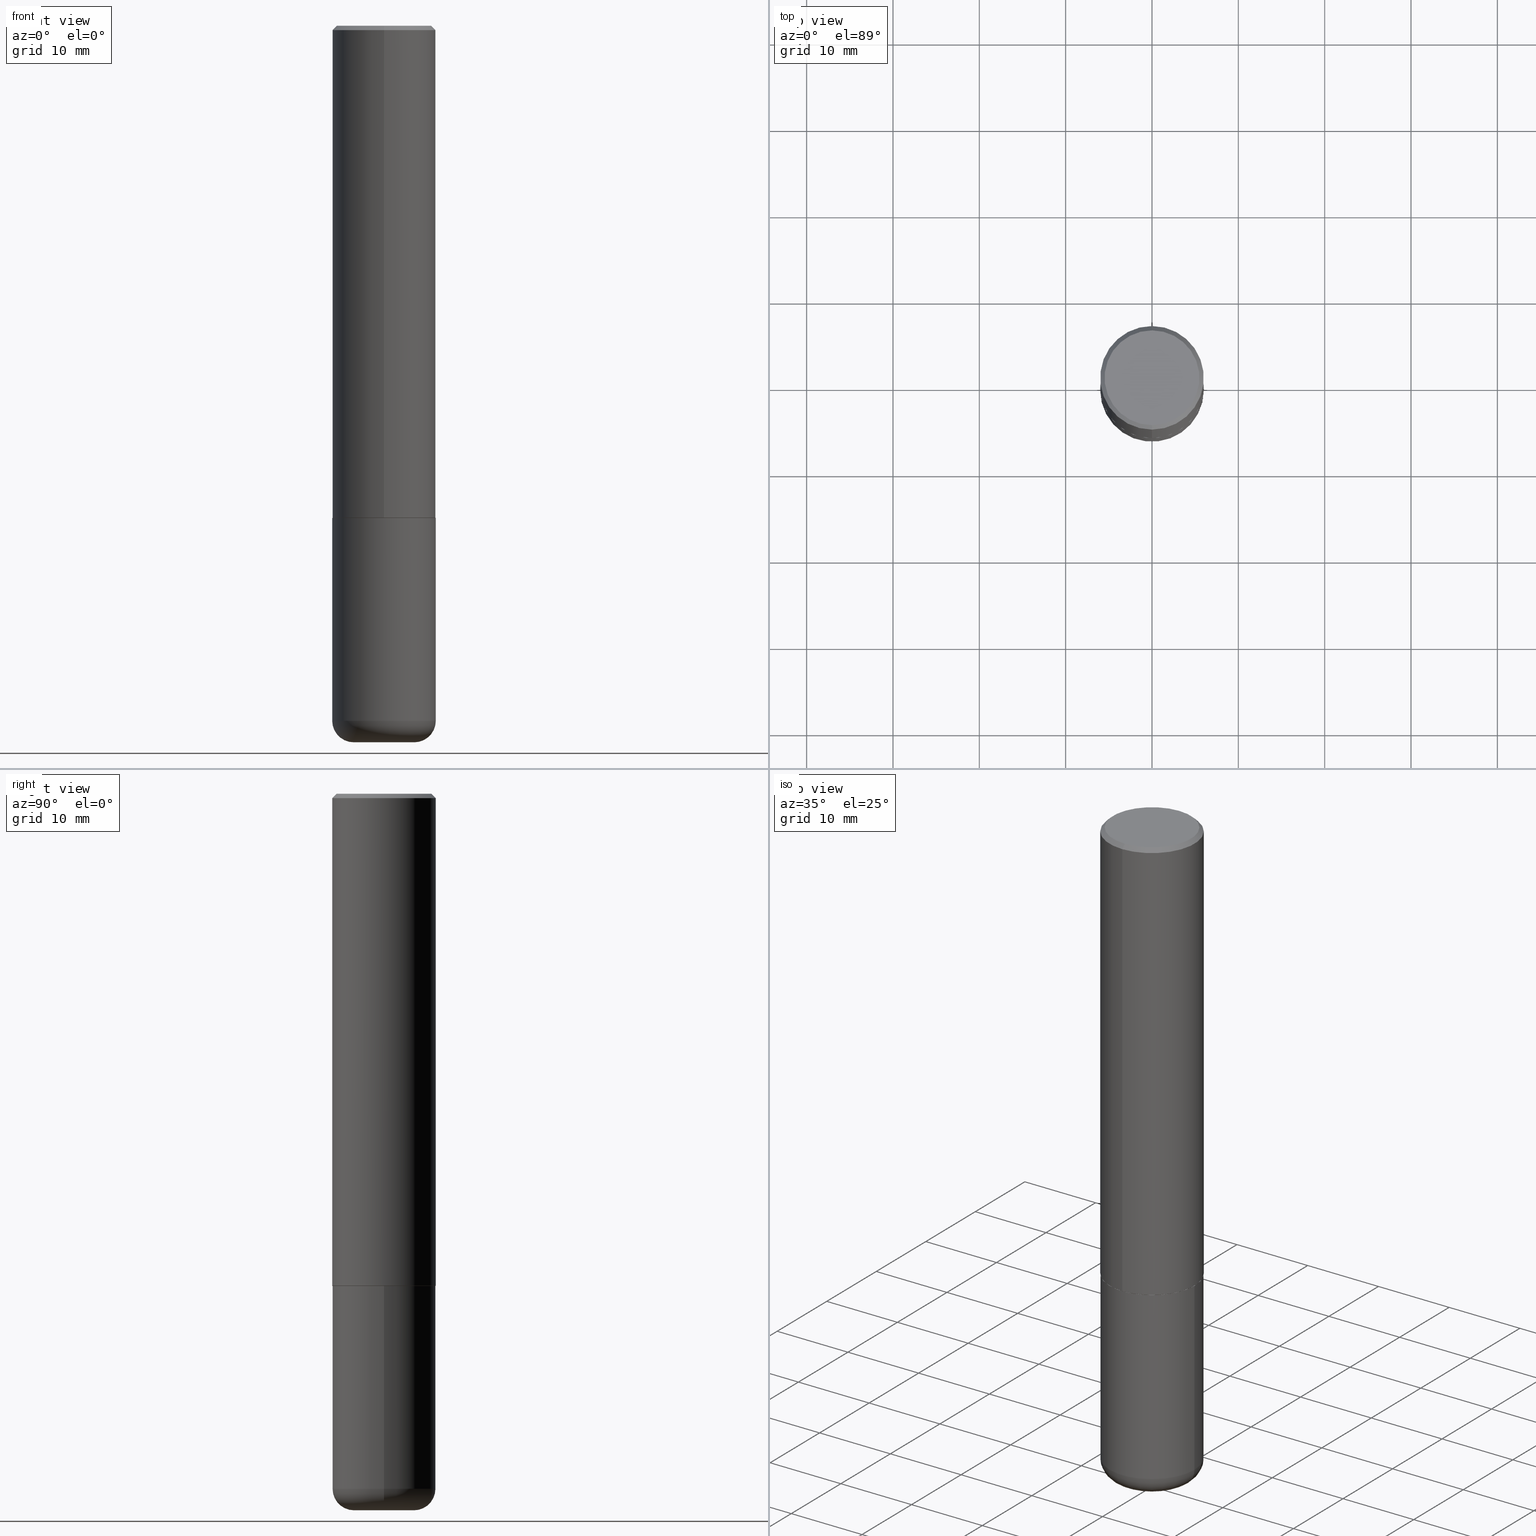
[diagram: canonical four-view strip — front | top / right | iso, engineering-drawing reading convention]
A machine part, canonical four-view strip (front | top / right | iso — engineering-drawing reading convention). The complete STEP part file that produces these views, byte-faithful:
ISO-10303-21;
HEADER;
FILE_DESCRIPTION (( 'STEP AP203' ),
    '1' );
FILE_NAME ('47171.STEP',
    '2024-03-06T01:20:21',
    ( '' ),
    ( '' ),
    'SwSTEP 2.0',
    'SolidWorks 2023',
    '' );
FILE_SCHEMA (( 'CONFIG_CONTROL_DESIGN' ));
ENDSEC;

DATA;
#1 = ORIENTED_EDGE ( 'NONE', *, *, #309, .T. ) ;
#2 = PERSON ( 'UNSPECIFIED', 'UNSPECIFIED', 'UNSPECIFIED', ('UNSPECIFIED'), ('UNSPECIFIED'), ('UNSPECIFIED') ) ;
#3 = EDGE_CURVE ( 'NONE', #266, #196, #102, .T. ) ;
#4 = ORIENTED_EDGE ( 'NONE', *, *, #389, .F. ) ;
#5 = DIRECTION ( 'NONE',  ( -2.445468806185136597E-29, 3.491481338843145583E-15, 1.000000000000000000 ) ) ;
#6 = EDGE_LOOP ( 'NONE', ( #298, #342 ) ) ;
#7 = APPLICATION_CONTEXT ( 'configuration controlled 3d designs of mechanical parts and assemblies' ) ;
#8 = AXIS2_PLACEMENT_3D ( 'NONE', #247, #401, #194 ) ;
#9 = DIRECTION ( 'NONE',  ( -2.443198551934710321E-29, 3.494732472144603410E-15, 1.000000000000000000 ) ) ;
#10 = CARTESIAN_POINT ( 'NONE',  ( 7.178715118017931868E-45, -1.026837905226585320E-30, -2.938244667971532280E-16 ) ) ;
#11 = CARTESIAN_POINT ( 'NONE',  ( 1.678301941865385582E-15, 0.2361999999999924160, -2.243100000000000982 ) ) ;
#12 = DIRECTION ( 'NONE',  ( -2.443198551934710321E-29, 3.494732472144603410E-15, 1.000000000000000000 ) ) ;
#13 = ADVANCED_FACE ( 'NONE', ( #150 ), #269, .F. ) ;
#14 = PLANE ( 'NONE',  #284 ) ;
#15 = ORIENTED_EDGE ( 'NONE', *, *, #50, .F. ) ;
#16 = EDGE_CURVE ( 'NONE', #120, #146, #75, .T. ) ;
#17 = AXIS2_PLACEMENT_3D ( 'NONE', #10, #393, #143 ) ;
#18 = ORIENTED_EDGE ( 'NONE', *, *, #223, .T. ) ;
#19 = DATE_AND_TIME ( #58, #92 ) ;
#20 = COORDINATED_UNIVERSAL_TIME_OFFSET ( 5, 0, .BEHIND. ) ;
#21 = CARTESIAN_POINT ( 'NONE',  ( -0.2362000000000000766, -7.772090597981385734E-15, -2.244100000000000428 ) ) ;
#22 = CARTESIAN_POINT ( 'NONE',  ( 4.886397103869442398E-31, -6.989464944289237832E-17, -0.02000000000000009062 ) ) ;
#23 = AXIS2_PLACEMENT_3D ( 'NONE', #293, #356, #106 ) ;
#24 = AXIS2_PLACEMENT_3D ( 'NONE', #337, #109, #307 ) ;
#25 = DIRECTION ( 'NONE',  ( 2.443198551934710321E-29, -3.494732472144603016E-15, -1.000000000000000000 ) ) ;
#26 = ADVANCED_FACE ( 'NONE', ( #44 ), #304, .T. ) ;
#27 = CARTESIAN_POINT ( 'NONE',  ( -1.551844647095920733E-15, -0.2162000000000002808, 4.617366936805109079E-16 ) ) ;
#28 = ORIENTED_EDGE ( 'NONE', *, *, #327, .T. ) ;
#29 = VECTOR ( 'NONE', #355, 39.37007874015748143 ) ;
#30 = DIRECTION ( 'NONE',  ( -6.982962677686265922E-15, -1.000000000000000000, 3.484499991918702719E-15 ) ) ;
#31 = DIRECTION ( 'NONE',  ( -4.851104656540954020E-15, -0.7071067811865485719, -0.7071067811865464625 ) ) ;
#32 = DESIGN_CONTEXT ( 'detailed design', #7, 'design' ) ;
#33 = CIRCLE ( 'NONE', #205, 0.2162000000000002808 ) ;
#34 = DIRECTION ( 'NONE',  ( 1.000000000000000000, -6.982962677686268288E-15, 0.000000000000000000 ) ) ;
#35 = ORIENTED_EDGE ( 'NONE', *, *, #156, .F. ) ;
#36 = ADVANCED_FACE ( 'NONE', ( #148 ), #198, .T. ) ;
#37 = DIRECTION ( 'NONE',  ( -2.445468806185136597E-29, 3.491481338843145583E-15, 1.000000000000000000 ) ) ;
#38 = DIMENSIONAL_EXPONENTS ( 1.000000000000000000, 0.000000000000000000, 0.000000000000000000, 0.000000000000000000, 0.000000000000000000, 0.000000000000000000, 0.000000000000000000 ) ;
#39 = CARTESIAN_POINT ( 'NONE',  ( 5.482781870396684000E-29, -7.842529140739704038E-15, -2.244100000000000428 ) ) ;
#40 = VERTEX_POINT ( 'NONE', #122 ) ;
#41 = AXIS2_PLACEMENT_3D ( 'NONE', #190, #315, #59 ) ;
#42 = FACE_OUTER_BOUND ( 'NONE', #6, .T. ) ;
#43 =( GEOMETRIC_REPRESENTATION_CONTEXT ( 3 ) GLOBAL_UNCERTAINTY_ASSIGNED_CONTEXT ( ( #108 ) ) GLOBAL_UNIT_ASSIGNED_CONTEXT ( ( #237, #395, #333 ) ) REPRESENTATION_CONTEXT ( 'NONE', 'WORKASPACE' ) );
#44 = FACE_OUTER_BOUND ( 'NONE', #137, .T. ) ;
#45 = EDGE_CURVE ( 'NONE', #100, #120, #231, .T. ) ;
#46 = PERSON_AND_ORGANIZATION ( #2, #131 ) ;
#47 = DIRECTION ( 'NONE',  ( -1.000000000000000000, 6.982962677686265922E-15, -4.876176775795935793E-29 ) ) ;
#48 = APPROVAL_DATE_TIME ( #86, #398 ) ;
#49 = EDGE_LOOP ( 'NONE', ( #70, #79, #82, #113 ) ) ;
#50 = EDGE_CURVE ( 'NONE', #241, #292, #384, .T. ) ;
#51 = PERSON_AND_ORGANIZATION ( #2, #131 ) ;
#52 = VECTOR ( 'NONE', #177, 39.37007874015748143 ) ;
#53 = DIRECTION ( 'NONE',  ( 2.443198551934710321E-29, -3.494732472144603410E-15, -1.000000000000000000 ) ) ;
#54 = APPROVAL_ROLE ( '' ) ;
#55 = CC_DESIGN_DATE_AND_TIME_ASSIGNMENT ( #348, #375, ( #256 ) ) ;
#56 = DIRECTION ( 'NONE',  ( -6.982962677686265922E-15, -1.000000000000000000, 3.484499991918702719E-15 ) ) ;
#57 = CARTESIAN_POINT ( 'NONE',  ( -0.1378000000000000058, -9.908617773195276440E-15, -3.267700000000000049 ) ) ;
#58 = CALENDAR_DATE ( 2024, 5, 3 ) ;
#59 = DIRECTION ( 'NONE',  ( 6.982962677686265922E-15, 1.000000000000000000, -3.487819265831411744E-15 ) ) ;
#60 = VECTOR ( 'NONE', #261, 39.37007874015748143 ) ;
#61 = CC_DESIGN_APPROVAL ( #192, ( #256 ) ) ;
#62 = DIRECTION ( 'NONE',  ( -2.443198551934710321E-29, 3.494732472144603410E-15, 1.000000000000000000 ) ) ;
#63 = EDGE_LOOP ( 'NONE', ( #332, #238, #210, #361 ) ) ;
#64 = ADVANCED_FACE ( 'NONE', ( #126 ), #249, .T. ) ;
#65 = DIRECTION ( 'NONE',  ( -2.445468806185136597E-29, 3.491481338843145583E-15, 1.000000000000000000 ) ) ;
#66 = AXIS2_PLACEMENT_3D ( 'NONE', #224, #94, #280 ) ;
#67 = CARTESIAN_POINT ( 'NONE',  ( -1.620449627073635079E-15, -0.2362000000000000766, -0.01999999999999926489 ) ) ;
#68 = CC_DESIGN_DATE_AND_TIME_ASSIGNMENT ( #19, #219, ( #97 ) ) ;
#69 = CARTESIAN_POINT ( 'NONE',  ( -1.642392821791755093E-15, -0.2352000000000078750, -2.244099999999999540 ) ) ;
#70 = ORIENTED_EDGE ( 'NONE', *, *, #45, .F. ) ;
#71 = CARTESIAN_POINT ( 'NONE',  ( 7.750424287442554569E-29, -1.106555180719558034E-14, -3.169299999999999784 ) ) ;
#72 = ORIENTED_EDGE ( 'NONE', *, *, #259, .T. ) ;
#73 = CONICAL_SURFACE ( 'NONE', #41, 0.2361999999999999933, 0.7853981633974463916 ) ;
#74 = DIRECTION ( 'NONE',  ( 2.438088387897960049E-29, -3.491481338843145188E-15, -1.000000000000000000 ) ) ;
#75 = LINE ( 'NONE', #185, #52 ) ;
#76 = DIRECTION ( 'NONE',  ( 0.000000000000000000, 0.000000000000000000, 1.000000000000000000 ) ) ;
#77 = ORIENTED_EDGE ( 'NONE', *, *, #229, .F. ) ;
#78 = EDGE_CURVE ( 'NONE', #324, #241, #282, .T. ) ;
#79 = ORIENTED_EDGE ( 'NONE', *, *, #318, .T. ) ;
#80 = AXIS2_PLACEMENT_3D ( 'NONE', #321, #91, #56 ) ;
#81 = DIRECTION ( 'NONE',  ( 1.000000000000000000, 0.000000000000000000, 0.000000000000000000 ) ) ;
#82 = ORIENTED_EDGE ( 'NONE', *, *, #386, .T. ) ;
#83 = APPROVAL_DATE_TIME ( #244, #248 ) ;
#84 = ORIENTED_EDGE ( 'NONE', *, *, #104, .F. ) ;
#85 = ADVANCED_FACE ( 'NONE', ( #285 ), #313, .T. ) ;
#86 = DATE_AND_TIME ( #252, #138 ) ;
#87 = CARTESIAN_POINT ( 'NONE',  ( -0.2362000000000000766, -9.387249865330223945E-15, -3.169299999999999784 ) ) ;
#88 = CLOSED_SHELL ( 'NONE', ( #240, #26, #121, #163, #214, #36, #218, #134 ) ) ;
#89 = PERSON_AND_ORGANIZATION_ROLE ( 'classification_officer' ) ;
#90 = CIRCLE ( 'NONE', #325, 0.1378000000000000058 ) ;
#91 = DIRECTION ( 'NONE',  ( -2.443198551934710321E-29, 3.494732472144603410E-15, 1.000000000000000000 ) ) ;
#92 = LOCAL_TIME ( 20, 20, 21.00000000000000000, #402 ) ;
#93 = CARTESIAN_POINT ( 'NONE',  ( -1.649375784469496920E-15, -0.2362000000000001321, 8.254558099205557624E-16 ) ) ;
#94 = DIRECTION ( 'NONE',  ( -2.445468806185136597E-29, 3.491481338843145583E-15, 1.000000000000000000 ) ) ;
#95 = DIRECTION ( 'NONE',  ( 1.000000000000000000, -6.982962677686266711E-15, 4.876176775795936353E-29 ) ) ;
#96 = CIRCLE ( 'NONE', #166, 0.2362000000000000210 ) ;
#97 = PRODUCT_DEFINITION ( 'UNKNOWN', '', #302, #32 ) ;
#98 = DIRECTION ( 'NONE',  ( -2.443198551934710321E-29, 3.494732472144603410E-15, 1.000000000000000000 ) ) ;
#99 = CARTESIAN_POINT ( 'NONE',  ( 7.750424287442554569E-29, -1.106555180719558034E-14, -3.169299999999999784 ) ) ;
#100 = VERTEX_POINT ( 'NONE', #57 ) ;
#101 = CIRCLE ( 'NONE', #275, 0.2362000000000002709 ) ;
#102 = CIRCLE ( 'NONE', #17, 0.2162000000000002808 ) ;
#103 = APPROVAL_PERSON_ORGANIZATION ( #299, #248, #145 ) ;
#104 = EDGE_CURVE ( 'NONE', #182, #40, #151, .T. ) ;
#105 = PRODUCT_DEFINITION_SHAPE ( 'NONE', 'NONE',  #97 ) ;
#106 = DIRECTION ( 'NONE',  ( 1.000000000000000000, -6.982962677686268288E-15, 0.000000000000000000 ) ) ;
#107 = ORIENTED_EDGE ( 'NONE', *, *, #50, .T. ) ;
#108 = UNCERTAINTY_MEASURE_WITH_UNIT (LENGTH_MEASURE( 1.000000000000000082E-05 ), #237, 'distance_accuracy_value', 'NONE');
#109 = DIRECTION ( 'NONE',  ( -2.443198551934710321E-29, 3.494732472144603410E-15, 1.000000000000000000 ) ) ;
#110 = EDGE_LOOP ( 'NONE', ( #396, #344 ) ) ;
#111 = AXIS2_PLACEMENT_3D ( 'NONE', #207, #12, #334 ) ;
#112 = CARTESIAN_POINT ( 'NONE',  ( -1.649375784469443080E-15, -0.2362000000000081257, -2.243099999999999206 ) ) ;
#113 = ORIENTED_EDGE ( 'NONE', *, *, #327, .F. ) ;
#114 = CARTESIAN_POINT ( 'NONE',  ( 4.886397103869442398E-31, -6.989464944289237832E-17, -0.02000000000000009062 ) ) ;
#115 = ORIENTED_EDGE ( 'NONE', *, *, #272, .T. ) ;
#116 = DIRECTION ( 'NONE',  ( 1.000000000000000000, -6.982962677686272233E-15, 0.000000000000000000 ) ) ;
#117 = ORIENTED_EDGE ( 'NONE', *, *, #343, .F. ) ;
#118 = VECTOR ( 'NONE', #139, 39.37007874015748143 ) ;
#119 = CALENDAR_DATE ( 2024, 5, 3 ) ;
#120 = VERTEX_POINT ( 'NONE', #87 ) ;
#121 = ADVANCED_FACE ( 'NONE', ( #349 ), #73, .T. ) ;
#122 = CARTESIAN_POINT ( 'NONE',  ( 1.674749228186611702E-15, 0.2351999999999921653, -2.244100000000000872 ) ) ;
#123 = PERSON_AND_ORGANIZATION_ROLE ( 'design_supplier' ) ;
#124 = DIRECTION ( 'NONE',  ( -2.443198551934710321E-29, 3.494732472144603016E-15, 1.000000000000000000 ) ) ;
#125 = CALENDAR_DATE ( 2024, 5, 3 ) ;
#126 = FACE_OUTER_BOUND ( 'NONE', #63, .T. ) ;
#127 = PLANE ( 'NONE',  #312 ) ;
#128 = CARTESIAN_POINT ( 'NONE',  ( 0.000000000000000000, 0.000000000000000000, 0.000000000000000000 ) ) ;
#129 = LINE ( 'NONE', #226, #29 ) ;
#130 = AXIS2_PLACEMENT_3D ( 'NONE', #228, #288, #413 ) ;
#131 = ORGANIZATION ( 'UNSPECIFIED', 'UNSPECIFIED', '' ) ;
#132 = EDGE_CURVE ( 'NONE', #196, #266, #33, .T. ) ;
#133 = CARTESIAN_POINT ( 'NONE',  ( -1.620449627073635079E-15, -0.2362000000000000766, -0.01999999999999926489 ) ) ;
#134 = ADVANCED_FACE ( 'NONE', ( #350 ), #127, .F. ) ;
#135 = ORIENTED_EDGE ( 'NONE', *, *, #259, .F. ) ;
#136 = LINE ( 'NONE', #168, #60 ) ;
#137 = EDGE_LOOP ( 'NONE', ( #18, #367, #15, #179 ) ) ;
#138 = LOCAL_TIME ( 20, 20, 21.00000000000000000, #153 ) ;
#139 = DIRECTION ( 'NONE',  ( -2.443198551934710321E-29, 3.494732472144603016E-15, 1.000000000000000000 ) ) ;
#140 = ORIENTED_EDGE ( 'NONE', *, *, #78, .T. ) ;
#141 = APPLICATION_PROTOCOL_DEFINITION ( 'international standard', 'config_control_design', 1994, #7 ) ;
#142 = DIRECTION ( 'NONE',  ( -1.000000000000000000, 6.982962677686265922E-15, -4.876176775795935793E-29 ) ) ;
#143 = DIRECTION ( 'NONE',  ( -6.982962677686265922E-15, -1.000000000000000000, 3.494732472144603410E-15 ) ) ;
#144 = CIRCLE ( 'NONE', #339, 0.2361999999999999933 ) ;
#145 = APPROVAL_ROLE ( '' ) ;
#146 = VERTEX_POINT ( 'NONE', #21 ) ;
#147 =( LENGTH_UNIT ( ) NAMED_UNIT ( * ) SI_UNIT ( $, .METRE. ) );
#148 = FACE_OUTER_BOUND ( 'NONE', #363, .T. ) ;
#149 = DIRECTION ( 'NONE',  ( -6.982962677686265922E-15, -1.000000000000000000, 3.487819265831411744E-15 ) ) ;
#150 = FACE_OUTER_BOUND ( 'NONE', #383, .T. ) ;
#151 = CIRCLE ( 'NONE', #80, 0.2352000000000000202 ) ;
#152 = ORIENTED_EDGE ( 'NONE', *, *, #305, .F. ) ;
#153 = COORDINATED_UNIVERSAL_TIME_OFFSET ( 5, 0, .BEHIND. ) ;
#154 = CALENDAR_DATE ( 2024, 5, 3 ) ;
#155 = LINE ( 'NONE', #191, #416 ) ;
#156 = EDGE_CURVE ( 'NONE', #196, #292, #155, .T. ) ;
#157 = PERSON_AND_ORGANIZATION_ROLE ( 'creator' ) ;
#158 = LOCAL_TIME ( 20, 20, 21.00000000000000000, #239 ) ;
#159 = DIRECTION ( 'NONE',  ( -2.443198551934710321E-29, 3.494732472144603410E-15, 1.000000000000000000 ) ) ;
#160 = CC_DESIGN_PERSON_AND_ORGANIZATION_ASSIGNMENT ( #246, #89, ( #256 ) ) ;
#161 = MANIFOLD_SOLID_BREP ( 'Body-Move/Copy2[1]', #164 ) ;
#162 = FACE_OUTER_BOUND ( 'NONE', #338, .T. ) ;
#163 = ADVANCED_FACE ( 'NONE', ( #317 ), #180, .T. ) ;
#164 = CLOSED_SHELL ( 'NONE', ( #85, #64, #13, #176, #270, #354 ) ) ;
#165 = CARTESIAN_POINT ( 'NONE',  ( 5.482781870396684000E-29, -7.842529140739704038E-15, -2.244100000000000428 ) ) ;
#166 = AXIS2_PLACEMENT_3D ( 'NONE', #263, #387, #34 ) ;
#167 = APPROVAL_PERSON_ORGANIZATION ( #404, #398, #54 ) ;
#168 = CARTESIAN_POINT ( 'NONE',  ( 1.671196514507810409E-15, 0.2351999999999921653, -2.244100000000000872 ) ) ;
#169 = PRODUCT ( '47171', '47171', '', ( #335 ) ) ;
#170 = PLANE ( 'NONE',  #188 ) ;
#171 = CARTESIAN_POINT ( 'NONE',  ( 1.579546157692634608E-15, 0.2162000000000002808, -1.049385627274817561E-15 ) ) ;
#172 = ORIENTED_EDGE ( 'NONE', *, *, #156, .T. ) ;
#173 = APPROVAL_PERSON_ORGANIZATION ( #316, #192, #314 ) ;
#174 = VERTEX_POINT ( 'NONE', #222 ) ;
#175 = DIRECTION ( 'NONE',  ( -4.937700262164969294E-15, -0.7071067811866054154, 0.7071067811864896191 ) ) ;
#176 = ADVANCED_FACE ( 'NONE', ( #162 ), #408, .T. ) ;
#177 = DIRECTION ( 'NONE',  ( -2.445468806185136877E-29, 3.491481338843145188E-15, 1.000000000000000000 ) ) ;
#178 = PERSON_AND_ORGANIZATION_ROLE ( 'design_owner' ) ;
#179 = ORIENTED_EDGE ( 'NONE', *, *, #78, .F. ) ;
#180 = CONICAL_SURFACE ( 'NONE', #390, 0.2361999999999999933, 0.7853981633974463916 ) ;
#181 = CARTESIAN_POINT ( 'NONE',  ( 5.480338671844748839E-29, -7.839034408267561952E-15, -2.243100000000000094 ) ) ;
#182 = VERTEX_POINT ( 'NONE', #69 ) ;
#183 = EDGE_CURVE ( 'NONE', #258, #100, #379, .T. ) ;
#184 = APPROVAL_STATUS ( 'not_yet_approved' ) ;
#185 = CARTESIAN_POINT ( 'NONE',  ( -0.2361999999999999933, 1.678301941865356591E-15, -1.161852468318208757E-29 ) ) ;
#186 = PERSON_AND_ORGANIZATION ( #2, #131 ) ;
#187 = ORIENTED_EDGE ( 'NONE', *, *, #286, .F. ) ;
#188 = AXIS2_PLACEMENT_3D ( 'NONE', #202, #201, #257 ) ;
#189 = APPROVAL_STATUS ( 'not_yet_approved' ) ;
#190 = CARTESIAN_POINT ( 'NONE',  ( 4.886397103869442398E-31, -6.989464944289237832E-17, -0.02000000000000009062 ) ) ;
#191 = CARTESIAN_POINT ( 'NONE',  ( 1.649375784469496525E-15, 0.2361999999999999378, -0.02000000000000091288 ) ) ;
#192 = APPROVAL ( #189, 'UNSPECIFIED' ) ;
#193 = AXIS2_PLACEMENT_3D ( 'NONE', #233, #369, #47 ) ;
#194 = DIRECTION ( 'NONE',  ( -6.982962677686265922E-15, -1.000000000000000000, 3.487819265831411744E-15 ) ) ;
#195 = LINE ( 'NONE', #323, #267 ) ;
#196 = VERTEX_POINT ( 'NONE', #171 ) ;
#197 = CARTESIAN_POINT ( 'NONE',  ( 0.1378000000000000058, -1.237136582792291392E-14, -3.267700000000000049 ) ) ;
#198 = CONICAL_SURFACE ( 'NONE', #301, 0.2352000000000000202, 0.7853981633975336552 ) ;
#199 = LOCAL_TIME ( 20, 20, 21.00000000000000000, #371 ) ;
#200 = DIRECTION ( 'NONE',  ( -2.445468806185136597E-29, 3.491481338843145583E-15, 1.000000000000000000 ) ) ;
#201 = DIRECTION ( 'NONE',  ( -2.443198551934710321E-29, 3.494732472144603016E-15, 1.000000000000000000 ) ) ;
#202 = CARTESIAN_POINT ( 'NONE',  ( 5.482781870396684000E-29, -7.842529140739704038E-15, -2.244100000000000428 ) ) ;
#203 = APPLICATION_CONTEXT ( 'configuration controlled 3d designs of mechanical parts and assemblies' ) ;
#204 = ORIENTED_EDGE ( 'NONE', *, *, #278, .F. ) ;
#205 = AXIS2_PLACEMENT_3D ( 'NONE', #406, #251, #353 ) ;
#206 = AXIS2_PLACEMENT_3D ( 'NONE', #181, #391, #364 ) ;
#207 = CARTESIAN_POINT ( 'NONE',  ( 0.000000000000000000, 0.000000000000000000, 0.000000000000000000 ) ) ;
#208 = ORIENTED_EDGE ( 'NONE', *, *, #389, .T. ) ;
#209 = CARTESIAN_POINT ( 'NONE',  ( 0.000000000000000000, 0.000000000000000000, 0.000000000000000000 ) ) ;
#210 = ORIENTED_EDGE ( 'NONE', *, *, #235, .F. ) ;
#211 = CIRCLE ( 'NONE', #23, 0.2362000000000000210 ) ;
#212 = APPLICATION_PROTOCOL_DEFINITION ( 'international standard', 'config_control_design', 1994, #203 ) ;
#213 = ORIENTED_EDGE ( 'NONE', *, *, #272, .F. ) ;
#214 = ADVANCED_FACE ( 'NONE', ( #415 ), #232, .T. ) ;
#215 = ORIENTED_EDGE ( 'NONE', *, *, #104, .T. ) ;
#216 = AXIS2_PLACEMENT_3D ( 'NONE', #230, #359, #380 ) ;
#217 = LOCAL_TIME ( 20, 20, 21.00000000000000000, #20 ) ;
#218 = ADVANCED_FACE ( 'NONE', ( #358 ), #170, .F. ) ;
#219 = DATE_TIME_ROLE ( 'creation_date' ) ;
#220 = DIRECTION ( 'NONE',  ( -2.445468806185136597E-29, 3.491481338843145583E-15, 1.000000000000000000 ) ) ;
#221 = DIRECTION ( 'NONE',  ( 6.982962677686265922E-15, 1.000000000000000000, -3.494732472144603016E-15 ) ) ;
#222 = CARTESIAN_POINT ( 'NONE',  ( 0.2362000000000000766, -1.271492759166507844E-14, -3.169299999999999784 ) ) ;
#223 = EDGE_CURVE ( 'NONE', #324, #399, #101, .T. ) ;
#224 = CARTESIAN_POINT ( 'NONE',  ( 7.750424287442554569E-29, -1.106555180719558034E-14, -3.169299999999999784 ) ) ;
#225 = PRODUCT_RELATED_PRODUCT_CATEGORY ( 'detail', '', ( #169 ) ) ;
#226 = CARTESIAN_POINT ( 'NONE',  ( 0.2361999999999999933, -1.649375784469496131E-15, 1.151752954443000088E-29 ) ) ;
#227 = ORIENTED_EDGE ( 'NONE', *, *, #16, .T. ) ;
#228 = CARTESIAN_POINT ( 'NONE',  ( 7.991058417971171713E-29, -1.140911357093774644E-14, -3.267700000000000049 ) ) ;
#229 = EDGE_CURVE ( 'NONE', #274, #146, #211, .T. ) ;
#230 = CARTESIAN_POINT ( 'NONE',  ( 0.000000000000000000, 0.000000000000000000, 0.000000000000000000 ) ) ;
#231 = CIRCLE ( 'NONE', #283, 0.09840000000000014013 ) ;
#232 = CYLINDRICAL_SURFACE ( 'NONE', #216, 0.2362000000000001321 ) ;
#233 = CARTESIAN_POINT ( 'NONE',  ( 5.487876547960065873E-29, -7.835233272497903917E-15, -2.244100000000000428 ) ) ;
#234 = AXIS2_PLACEMENT_3D ( 'NONE', #128, #254, #95 ) ;
#235 = EDGE_CURVE ( 'NONE', #174, #120, #260, .T. ) ;
#236 = ORIENTED_EDGE ( 'NONE', *, *, #305, .T. ) ;
#237 =( CONVERSION_BASED_UNIT ( 'INCH', #273 ) LENGTH_UNIT ( ) NAMED_UNIT ( #38 ) );
#238 = ORIENTED_EDGE ( 'NONE', *, *, #45, .T. ) ;
#239 = COORDINATED_UNIVERSAL_TIME_OFFSET ( 5, 0, .BEHIND. ) ;
#240 = ADVANCED_FACE ( 'NONE', ( #291 ), #242, .T. ) ;
#241 = VERTEX_POINT ( 'NONE', #133 ) ;
#242 = CONICAL_SURFACE ( 'NONE', #366, 0.2352000000000000202, 0.7853981633975336552 ) ;
#243 = AXIS2_PLACEMENT_3D ( 'NONE', #265, #362, #116 ) ;
#244 = DATE_AND_TIME ( #119, #158 ) ;
#245 = ORIENTED_EDGE ( 'NONE', *, *, #343, .T. ) ;
#246 = PERSON_AND_ORGANIZATION ( #2, #131 ) ;
#247 = CARTESIAN_POINT ( 'NONE',  ( 4.886397103869442398E-31, -6.989464944289237832E-17, -0.02000000000000009062 ) ) ;
#248 = APPROVAL ( #184, 'UNSPECIFIED' ) ;
#249 = TOROIDAL_SURFACE ( 'NONE', #66, 0.1378000000000000058, 0.09840000000000012625 ) ;
#250 = CIRCLE ( 'NONE', #243, 0.09840000000000014013 ) ;
#251 = DIRECTION ( 'NONE',  ( -2.443198551934710321E-29, 3.494732472144603410E-15, 1.000000000000000000 ) ) ;
#252 = CALENDAR_DATE ( 2024, 5, 3 ) ;
#253 = DIRECTION ( 'NONE',  ( 6.982962677686265922E-15, 1.000000000000000000, -3.487819265831411744E-15 ) ) ;
#254 = DIRECTION ( 'NONE',  ( -2.445468806185136597E-29, 3.491481338843145583E-15, 1.000000000000000000 ) ) ;
#255 = CC_DESIGN_PERSON_AND_ORGANIZATION_ASSIGNMENT ( #46, #178, ( #169 ) ) ;
#256 = SECURITY_CLASSIFICATION ( '', '', #400 ) ;
#257 = DIRECTION ( 'NONE',  ( -6.982962677686265922E-15, -1.000000000000000000, 3.494732472144603016E-15 ) ) ;
#258 = VERTEX_POINT ( 'NONE', #197 ) ;
#259 = EDGE_CURVE ( 'NONE', #40, #399, #136, .T. ) ;
#260 = CIRCLE ( 'NONE', #319, 0.2361999999999999933 ) ;
#261 = DIRECTION ( 'NONE',  ( 5.024295867788490741E-15, 0.7071067811866103003, 0.7071067811864847341 ) ) ;
#262 = EDGE_LOOP ( 'NONE', ( #213, #308, #172, #289 ) ) ;
#263 = CARTESIAN_POINT ( 'NONE',  ( 5.487876547960065873E-29, -7.835233272497903917E-15, -2.244100000000000428 ) ) ;
#264 = ORIENTED_EDGE ( 'NONE', *, *, #309, .F. ) ;
#265 = CARTESIAN_POINT ( 'NONE',  ( 0.1378000000000000058, -1.202780406418074782E-14, -3.169299999999999784 ) ) ;
#266 = VERTEX_POINT ( 'NONE', #27 ) ;
#267 = VECTOR ( 'NONE', #175, 39.37007874015748143 ) ;
#268 = CARTESIAN_POINT ( 'NONE',  ( 7.750424287442554569E-29, -1.106555180719558034E-14, -3.169299999999999784 ) ) ;
#269 = PLANE ( 'NONE',  #193 ) ;
#270 = ADVANCED_FACE ( 'NONE', ( #330 ), #294, .T. ) ;
#271 = ORIENTED_EDGE ( 'NONE', *, *, #235, .T. ) ;
#272 = EDGE_CURVE ( 'NONE', #266, #241, #287, .T. ) ;
#273 = LENGTH_MEASURE_WITH_UNIT ( LENGTH_MEASURE( 0.02539999999999999897 ), #147 );
#274 = VERTEX_POINT ( 'NONE', #295 ) ;
#275 = AXIS2_PLACEMENT_3D ( 'NONE', #382, #98, #412 ) ;
#276 = PERSON_AND_ORGANIZATION ( #2, #131 ) ;
#277 = EDGE_LOOP ( 'NONE', ( #84, #117 ) ) ;
#278 = EDGE_CURVE ( 'NONE', #399, #292, #418, .T. ) ;
#279 = PERSON_AND_ORGANIZATION_ROLE ( 'creator' ) ;
#280 = DIRECTION ( 'NONE',  ( 1.000000000000000000, -6.982962677686269077E-15, 4.883557194083113462E-29 ) ) ;
#281 = DATE_AND_TIME ( #154, #217 ) ;
#282 = LINE ( 'NONE', #93, #373 ) ;
#283 = AXIS2_PLACEMENT_3D ( 'NONE', #403, #378, #405 ) ;
#284 = AXIS2_PLACEMENT_3D ( 'NONE', #303, #74, #142 ) ;
#285 = FACE_OUTER_BOUND ( 'NONE', #300, .T. ) ;
#286 = EDGE_CURVE ( 'NONE', #146, #274, #96, .T. ) ;
#287 = LINE ( 'NONE', #67, #411 ) ;
#288 = DIRECTION ( 'NONE',  ( -2.445468806185136597E-29, 3.491481338843145583E-15, 1.000000000000000000 ) ) ;
#289 = ORIENTED_EDGE ( 'NONE', *, *, #407, .T. ) ;
#290 = MANIFOLD_SOLID_BREP ( 'Body-Move/Copy2[2]', #88 ) ;
#291 = FACE_OUTER_BOUND ( 'NONE', #336, .T. ) ;
#292 = VERTEX_POINT ( 'NONE', #409 ) ;
#293 = CARTESIAN_POINT ( 'NONE',  ( 5.487876547960065873E-29, -7.835233272497903917E-15, -2.244100000000000428 ) ) ;
#294 = TOROIDAL_SURFACE ( 'NONE', #347, 0.1378000000000000058, 0.09840000000000012625 ) ;
#295 = CARTESIAN_POINT ( 'NONE',  ( 0.2362000000000000210, -9.484609056967400443E-15, -2.244100000000000428 ) ) ;
#296 = ORIENTED_EDGE ( 'NONE', *, *, #3, .F. ) ;
#297 = CARTESIAN_POINT ( 'NONE',  ( 7.991058417971171713E-29, -1.140911357093774644E-14, -3.267700000000000049 ) ) ;
#298 = ORIENTED_EDGE ( 'NONE', *, *, #183, .F. ) ;
#299 = PERSON_AND_ORGANIZATION ( #2, #131 ) ;
#300 = EDGE_LOOP ( 'NONE', ( #271, #227, #77, #152 ) ) ;
#301 = AXIS2_PLACEMENT_3D ( 'NONE', #39, #159, #377 ) ;
#302 = PRODUCT_DEFINITION_FORMATION_WITH_SPECIFIED_SOURCE ( 'ANY', '', #169, .NOT_KNOWN. ) ;
#303 = CARTESIAN_POINT ( 'NONE',  ( 7.991058417971171713E-29, -1.140911357093774644E-14, -3.267700000000000049 ) ) ;
#304 = CYLINDRICAL_SURFACE ( 'NONE', #111, 0.2362000000000001321 ) ;
#305 = EDGE_CURVE ( 'NONE', #174, #274, #129, .T. ) ;
#306 = APPROVAL_DATE_TIME ( #281, #192 ) ;
#307 = DIRECTION ( 'NONE',  ( -6.982962677686265922E-15, -1.000000000000000000, 3.484499991918702719E-15 ) ) ;
#308 = ORIENTED_EDGE ( 'NONE', *, *, #132, .F. ) ;
#309 = EDGE_CURVE ( 'NONE', #182, #324, #195, .T. ) ;
#310 = APPROVAL_STATUS ( 'not_yet_approved' ) ;
#311 = ORIENTED_EDGE ( 'NONE', *, *, #407, .F. ) ;
#312 = AXIS2_PLACEMENT_3D ( 'NONE', #322, #25, #221 ) ;
#313 = CYLINDRICAL_SURFACE ( 'NONE', #357, 0.2361999999999999933 ) ;
#314 = APPROVAL_ROLE ( '' ) ;
#315 = DIRECTION ( 'NONE',  ( 2.443198551934710321E-29, -3.494732472144603410E-15, -1.000000000000000000 ) ) ;
#316 = PERSON_AND_ORGANIZATION ( #2, #131 ) ;
#317 = FACE_OUTER_BOUND ( 'NONE', #262, .T. ) ;
#318 = EDGE_CURVE ( 'NONE', #100, #258, #90, .T. ) ;
#319 = AXIS2_PLACEMENT_3D ( 'NONE', #99, #65, #326 ) ;
#320 = CC_DESIGN_APPROVAL ( #248, ( #97 ) ) ;
#321 = CARTESIAN_POINT ( 'NONE',  ( 5.482781870396684000E-29, -7.842529140739704038E-15, -2.244100000000000428 ) ) ;
#322 = CARTESIAN_POINT ( 'NONE',  ( 1.509716530915772690E-15, 0.2162000000000002808, -9.024733938762408486E-16 ) ) ;
#323 = CARTESIAN_POINT ( 'NONE',  ( -1.642392821791755093E-15, -0.2352000000000078750, -2.244099999999999540 ) ) ;
#324 = VERTEX_POINT ( 'NONE', #112 ) ;
#325 = AXIS2_PLACEMENT_3D ( 'NONE', #297, #37, #360 ) ;
#326 = DIRECTION ( 'NONE',  ( 1.000000000000000000, -6.982962677686265133E-15, 0.000000000000000000 ) ) ;
#327 = EDGE_CURVE ( 'NONE', #120, #174, #144, .T. ) ;
#328 = DIRECTION ( 'NONE',  ( 1.000000000000000000, -6.982962677686269077E-15, 4.883557194083113462E-29 ) ) ;
#329 = ORIENTED_EDGE ( 'NONE', *, *, #229, .T. ) ;
#330 = FACE_OUTER_BOUND ( 'NONE', #49, .T. ) ;
#331 = CARTESIAN_POINT ( 'NONE',  ( 1.678301941865357380E-15, 0.2362000000000001321, -8.254558099205557624E-16 ) ) ;
#332 = ORIENTED_EDGE ( 'NONE', *, *, #183, .T. ) ;
#333 =( NAMED_UNIT ( * ) SI_UNIT ( $, .STERADIAN. ) SOLID_ANGLE_UNIT ( ) );
#334 = DIRECTION ( 'NONE',  ( -6.982962677686265922E-15, -1.000000000000000000, 3.494732472144603410E-15 ) ) ;
#335 = MECHANICAL_CONTEXT ( 'NONE', #203, 'mechanical' ) ;
#336 = EDGE_LOOP ( 'NONE', ( #215, #72, #388, #264 ) ) ;
#337 = CARTESIAN_POINT ( 'NONE',  ( 5.482781870396684000E-29, -7.842529140739704038E-15, -2.244100000000000428 ) ) ;
#338 = EDGE_LOOP ( 'NONE', ( #365, #28, #236, #187 ) ) ;
#339 = AXIS2_PLACEMENT_3D ( 'NONE', #268, #5, #341 ) ;
#340 = CIRCLE ( 'NONE', #24, 0.2352000000000000202 ) ;
#341 = DIRECTION ( 'NONE',  ( 1.000000000000000000, -6.982962677686265133E-15, 0.000000000000000000 ) ) ;
#342 = ORIENTED_EDGE ( 'NONE', *, *, #318, .F. ) ;
#343 = EDGE_CURVE ( 'NONE', #40, #182, #340, .T. ) ;
#344 = ORIENTED_EDGE ( 'NONE', *, *, #3, .T. ) ;
#345 = CC_DESIGN_PERSON_AND_ORGANIZATION_ASSIGNMENT ( #51, #157, ( #97 ) ) ;
#346 = DIRECTION ( 'NONE',  ( 4.937700262164537787E-15, 0.7071067811865436870, -0.7071067811865513475 ) ) ;
#347 = AXIS2_PLACEMENT_3D ( 'NONE', #71, #200, #328 ) ;
#348 = DATE_AND_TIME ( #125, #199 ) ;
#349 = FACE_OUTER_BOUND ( 'NONE', #381, .T. ) ;
#350 = FACE_OUTER_BOUND ( 'NONE', #110, .T. ) ;
#351 = CC_DESIGN_PERSON_AND_ORGANIZATION_ASSIGNMENT ( #186, #279, ( #302 ) ) ;
#352 = AXIS2_PLACEMENT_3D ( 'NONE', #114, #9, #149 ) ;
#353 = DIRECTION ( 'NONE',  ( -6.982962677686265922E-15, -1.000000000000000000, 3.494732472144603410E-15 ) ) ;
#354 = ADVANCED_FACE ( 'NONE', ( #42 ), #14, .T. ) ;
#355 = DIRECTION ( 'NONE',  ( -2.445468806185136877E-29, 3.491481338843145188E-15, 1.000000000000000000 ) ) ;
#356 = DIRECTION ( 'NONE',  ( -2.445468806185136597E-29, 3.491481338843145583E-15, 1.000000000000000000 ) ) ;
#357 = AXIS2_PLACEMENT_3D ( 'NONE', #376, #220, #372 ) ;
#358 = FACE_OUTER_BOUND ( 'NONE', #277, .T. ) ;
#359 = DIRECTION ( 'NONE',  ( -2.443198551934710321E-29, 3.494732472144603410E-15, 1.000000000000000000 ) ) ;
#360 = DIRECTION ( 'NONE',  ( 1.000000000000000000, -6.982962677686265922E-15, 0.000000000000000000 ) ) ;
#361 = ORIENTED_EDGE ( 'NONE', *, *, #386, .F. ) ;
#362 = DIRECTION ( 'NONE',  ( -6.982962677686266711E-15, -1.000000000000000000, 3.491481338843145583E-15 ) ) ;
#363 = EDGE_LOOP ( 'NONE', ( #135, #245, #1, #4 ) ) ;
#364 = DIRECTION ( 'NONE',  ( -6.982962677686265922E-15, -1.000000000000000000, 3.469747663417773058E-15 ) ) ;
#365 = ORIENTED_EDGE ( 'NONE', *, *, #16, .F. ) ;
#366 = AXIS2_PLACEMENT_3D ( 'NONE', #165, #62, #30 ) ;
#367 = ORIENTED_EDGE ( 'NONE', *, *, #278, .T. ) ;
#368 = CC_DESIGN_SECURITY_CLASSIFICATION ( #256, ( #302 ) ) ;
#369 = DIRECTION ( 'NONE',  ( 2.438088387897960049E-29, -3.491481338843145188E-15, -1.000000000000000000 ) ) ;
#370 = CC_DESIGN_PERSON_AND_ORGANIZATION_ASSIGNMENT ( #276, #123, ( #302 ) ) ;
#371 = COORDINATED_UNIVERSAL_TIME_OFFSET ( 5, 0, .BEHIND. ) ;
#372 = DIRECTION ( 'NONE',  ( 1.000000000000000000, -6.982962677686266711E-15, 4.876176775795936353E-29 ) ) ;
#373 = VECTOR ( 'NONE', #124, 39.37007874015748143 ) ;
#374 = CIRCLE ( 'NONE', #206, 0.2362000000000002709 ) ;
#375 = DATE_TIME_ROLE ( 'classification_date' ) ;
#376 = CARTESIAN_POINT ( 'NONE',  ( 0.000000000000000000, 0.000000000000000000, 0.000000000000000000 ) ) ;
#377 = DIRECTION ( 'NONE',  ( -6.982962677686265922E-15, -1.000000000000000000, 3.484499991918702719E-15 ) ) ;
#378 = DIRECTION ( 'NONE',  ( 7.105427357601001859E-15, 1.000000000000000000, -3.491481338843145583E-15 ) ) ;
#379 = CIRCLE ( 'NONE', #130, 0.1378000000000000058 ) ;
#380 = DIRECTION ( 'NONE',  ( -6.982962677686265922E-15, -1.000000000000000000, 3.494732472144603410E-15 ) ) ;
#381 = EDGE_LOOP ( 'NONE', ( #296, #115, #107, #35 ) ) ;
#382 = CARTESIAN_POINT ( 'NONE',  ( 5.480338671844748839E-29, -7.839034408267561952E-15, -2.243100000000000094 ) ) ;
#383 = EDGE_LOOP ( 'NONE', ( #329, #414 ) ) ;
#384 = CIRCLE ( 'NONE', #8, 0.2361999999999999933 ) ;
#385 = CIRCLE ( 'NONE', #352, 0.2361999999999999933 ) ;
#386 = EDGE_CURVE ( 'NONE', #258, #174, #250, .T. ) ;
#387 = DIRECTION ( 'NONE',  ( -2.445468806185136597E-29, 3.491481338843145583E-15, 1.000000000000000000 ) ) ;
#388 = ORIENTED_EDGE ( 'NONE', *, *, #223, .F. ) ;
#389 = EDGE_CURVE ( 'NONE', #399, #324, #374, .T. ) ;
#390 = AXIS2_PLACEMENT_3D ( 'NONE', #22, #53, #253 ) ;
#391 = DIRECTION ( 'NONE',  ( -2.443198551934710321E-29, 3.494732472144603410E-15, 1.000000000000000000 ) ) ;
#392 = CC_DESIGN_APPROVAL ( #398, ( #302 ) ) ;
#393 = DIRECTION ( 'NONE',  ( -2.443198551934710321E-29, 3.494732472144603410E-15, 1.000000000000000000 ) ) ;
#394 = SHAPE_DEFINITION_REPRESENTATION ( #105, #410 ) ;
#395 =( NAMED_UNIT ( * ) PLANE_ANGLE_UNIT ( ) SI_UNIT ( $, .RADIAN. ) );
#396 = ORIENTED_EDGE ( 'NONE', *, *, #132, .T. ) ;
#397 = EDGE_LOOP ( 'NONE', ( #204, #208, #140, #311 ) ) ;
#398 = APPROVAL ( #310, 'UNSPECIFIED' ) ;
#399 = VERTEX_POINT ( 'NONE', #11 ) ;
#400 = SECURITY_CLASSIFICATION_LEVEL ( 'unclassified' ) ;
#401 = DIRECTION ( 'NONE',  ( -2.443198551934710321E-29, 3.494732472144603410E-15, 1.000000000000000000 ) ) ;
#402 = COORDINATED_UNIVERSAL_TIME_OFFSET ( 5, 0, .BEHIND. ) ;
#403 = CARTESIAN_POINT ( 'NONE',  ( -0.1378000000000000058, -1.008642391731816283E-14, -3.169299999999999784 ) ) ;
#404 = PERSON_AND_ORGANIZATION ( #2, #131 ) ;
#405 = DIRECTION ( 'NONE',  ( -1.000000000000000000, 7.105427357601008170E-15, 0.000000000000000000 ) ) ;
#406 = CARTESIAN_POINT ( 'NONE',  ( 7.178715118017931868E-45, -1.026837905226585320E-30, -2.938244667971532280E-16 ) ) ;
#407 = EDGE_CURVE ( 'NONE', #292, #241, #385, .T. ) ;
#408 = CYLINDRICAL_SURFACE ( 'NONE', #234, 0.2361999999999999933 ) ;
#409 = CARTESIAN_POINT ( 'NONE',  ( 1.649375784469496525E-15, 0.2361999999999999378, -0.02000000000000091288 ) ) ;
#410 = ADVANCED_BREP_SHAPE_REPRESENTATION ( '47171', ( #161, #290, #417 ), #43 ) ;
#411 = VECTOR ( 'NONE', #31, 39.37007874015748143 ) ;
#412 = DIRECTION ( 'NONE',  ( -6.982962677686265922E-15, -1.000000000000000000, 3.469747663417773058E-15 ) ) ;
#413 = DIRECTION ( 'NONE',  ( 1.000000000000000000, -6.982962677686265922E-15, 0.000000000000000000 ) ) ;
#414 = ORIENTED_EDGE ( 'NONE', *, *, #286, .T. ) ;
#415 = FACE_OUTER_BOUND ( 'NONE', #397, .T. ) ;
#416 = VECTOR ( 'NONE', #346, 39.37007874015748143 ) ;
#417 = AXIS2_PLACEMENT_3D ( 'NONE', #209, #76, #81 ) ;
#418 = LINE ( 'NONE', #331, #118 ) ;
ENDSEC;
END-ISO-10303-21;
